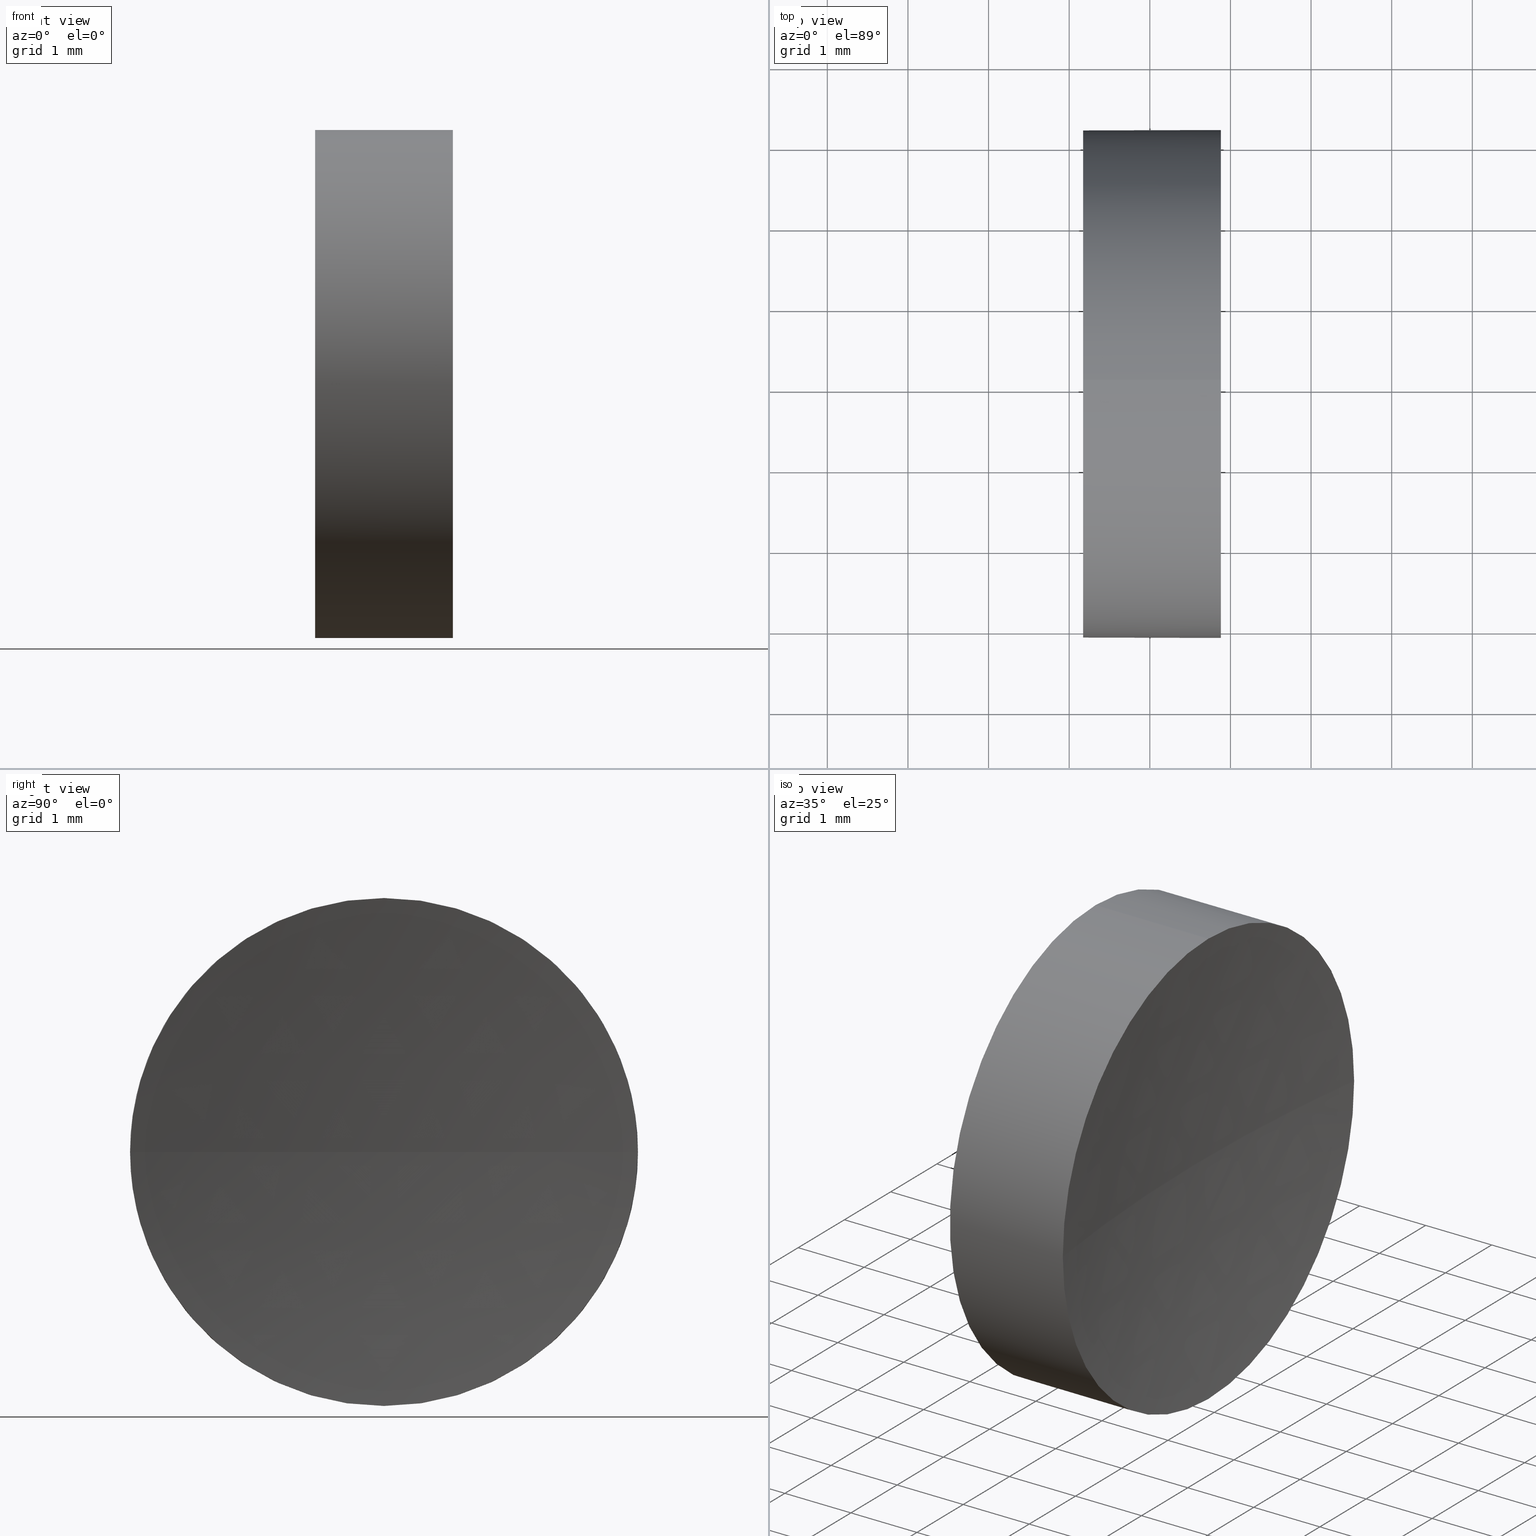
[diagram: canonical four-view strip — front | top / right | iso, engineering-drawing reading convention]
A machine part, canonical four-view strip (front | top / right | iso — engineering-drawing reading convention). The complete STEP part file that produces these views, byte-faithful:
ISO-10303-21;
HEADER;
FILE_DESCRIPTION (( 'STEP AP214' ),
    '1' );
FILE_NAME ('120009.STEP',
    '2019-06-14T03:21:34',
    ( '' ),
    ( '' ),
    'SwSTEP 2.0',
    'SolidWorks 2016',
    '' );
FILE_SCHEMA (( 'AUTOMOTIVE_DESIGN' ));
ENDSEC;

DATA;
#1 = DIRECTION ( 'NONE',  ( -1.000000000000000000, -0.0000000000000000000, -0.0000000000000000000 ) ) ;
#2 = CIRCLE ( 'NONE', #165, 3.150000000000001700 ) ;
#3 = SURFACE_STYLE_FILL_AREA ( #13 ) ;
#4 = FACE_OUTER_BOUND ( 'NONE', #22, .T. ) ;
#5 = STYLED_ITEM ( 'NONE', ( #122 ), #177 ) ;
#6 = ADVANCED_FACE ( 'NONE', ( #73 ), #180, .T. ) ;
#7 = MECHANICAL_DESIGN_GEOMETRIC_PRESENTATION_REPRESENTATION (  '', ( #5 ), #101 ) ;
#8 = SURFACE_STYLE_FILL_AREA ( #126 ) ;
#9 = ORIENTED_EDGE ( 'NONE', *, *, #141, .T. ) ;
#10 = APPLICATION_CONTEXT ( 'automotive_design' ) ;
#11 = SURFACE_SIDE_STYLE ('',( #8 ) ) ;
#12 = CARTESIAN_POINT ( 'NONE',  ( 47.40501261472310500, 13.04452057459747700, 0.0000000000000000000 ) ) ;
#13 = FILL_AREA_STYLE ('',( #103 ) ) ;
#14 = CARTESIAN_POINT ( 'NONE',  ( 47.40501261472310500, 13.04452057459747700, 0.0000000000000000000 ) ) ;
#15 = CARTESIAN_POINT ( 'NONE',  ( 23.88218947520227800, 13.04452057459747900, 0.0000000000000000000 ) ) ;
#16 = CARTESIAN_POINT ( 'NONE',  ( 23.88218947520227800, 13.04452057459747900, 0.0000000000000000000 ) ) ;
#17 = ORIENTED_EDGE ( 'NONE', *, *, #141, .F. ) ;
#18 = AXIS2_PLACEMENT_3D ( 'NONE', #50, #75, #87 ) ;
#19 = PRODUCT_DEFINITION ( 'δ֪', '', #21, #115 ) ;
#20 = EDGE_CURVE ( 'NONE', #152, #137, #70, .T. ) ;
#21 = PRODUCT_DEFINITION_FORMATION_WITH_SPECIFIED_SOURCE ( '�κ�', '', #49, .NOT_KNOWN. ) ;
#22 = EDGE_LOOP ( 'NONE', ( #66, #167, #17, #45 ) ) ;
#23 = ADVANCED_FACE ( 'NONE', ( #4 ), #58, .F. ) ;
#24 = EDGE_CURVE ( 'NONE', #46, #137, #118, .T. ) ;
#25 =( LENGTH_UNIT ( ) NAMED_UNIT ( * ) SI_UNIT ( .MILLI., .METRE. ) );
#26 = AXIS2_PLACEMENT_3D ( 'NONE', #185, #29, #89 ) ;
#27 = DIRECTION ( 'NONE',  ( 0.0000000000000000000, 0.0000000000000000000, 1.000000000000000000 ) ) ;
#28 = EDGE_CURVE ( 'NONE', #102, #48, #85, .T. ) ;
#29 = DIRECTION ( 'NONE',  ( 0.0000000000000000000, 0.0000000000000000000, 1.000000000000000000 ) ) ;
#30 = DIRECTION ( 'NONE',  ( 0.0000000000000000000, 1.000000000000000000, 0.0000000000000000000 ) ) ;
#31 = DIRECTION ( 'NONE',  ( 0.0000000000000000000, 0.0000000000000000000, 1.000000000000000000 ) ) ;
#32 = DIRECTION ( 'NONE',  ( -1.000000000000000000, -0.0000000000000000000, -0.0000000000000000000 ) ) ;
#33 = CLOSED_SHELL ( 'NONE', ( #153, #35, #23, #6, #63 ) ) ;
#34 = ORIENTED_EDGE ( 'NONE', *, *, #24, .F. ) ;
#35 = ADVANCED_FACE ( 'NONE', ( #163 ), #99, .F. ) ;
#36 = COLOUR_RGB ( '',1.000000000000000000, 1.000000000000000000, 1.000000000000000000 ) ;
#37 = EDGE_CURVE ( 'NONE', #46, #135, #128, .T. ) ;
#38 = DIRECTION ( 'NONE',  ( 0.0000000000000000000, 0.0000000000000000000, 1.000000000000000000 ) ) ;
#39 = FILL_AREA_STYLE_COLOUR ( '', #36 ) ;
#40 = PRODUCT_CONTEXT ( 'NONE', #168, 'mechanical' ) ;
#41 = AXIS2_PLACEMENT_3D ( 'NONE', #15, #1, #110 ) ;
#42 = DIRECTION ( 'NONE',  ( 0.0000000000000000000, 0.0000000000000000000, 1.000000000000000000 ) ) ;
#43 =( NAMED_UNIT ( * ) PLANE_ANGLE_UNIT ( ) SI_UNIT ( $, .RADIAN. ) );
#44 = CARTESIAN_POINT ( 'NONE',  ( 23.88218947520227800, 13.04452057459747900, 3.150000000000001700 ) ) ;
#45 = ORIENTED_EDGE ( 'NONE', *, *, #83, .T. ) ;
#46 = VERTEX_POINT ( 'NONE', #88 ) ;
#47 = EDGE_CURVE ( 'NONE', #135, #102, #59, .T. ) ;
#48 = VERTEX_POINT ( 'NONE', #144 ) ;
#49 = PRODUCT ( '120009', '120009', '', ( #40 ) ) ;
#50 = CARTESIAN_POINT ( 'NONE',  ( 21.22493055706841100, 13.04452057459747900, 0.0000000000000000000 ) ) ;
#51 = STYLED_ITEM ( 'NONE', ( #138 ), #164 ) ;
#52 = DIRECTION ( 'NONE',  ( 0.0000000000000000000, 1.000000000000000000, 1.224646799147353200E-016 ) ) ;
#53 = CARTESIAN_POINT ( 'NONE',  ( 47.40501261472310500, 13.04452057459747700, 0.0000000000000000000 ) ) ;
#54 = UNCERTAINTY_MEASURE_WITH_UNIT (LENGTH_MEASURE( 1.000000000000000100E-005 ), #136, 'distance_accuracy_value', 'NONE');
#55 = PRODUCT_DEFINITION_SHAPE ( 'NONE', 'NONE',  #19 ) ;
#56 = EDGE_LOOP ( 'NONE', ( #34, #81, #143, #183, #134 ) ) ;
#57 = MECHANICAL_DESIGN_GEOMETRIC_PRESENTATION_REPRESENTATION (  '', ( #51 ), #131 ) ;
#58 = SPHERICAL_SURFACE ( 'NONE', #119, 23.73279815894401100 ) ;
#59 = CIRCLE ( 'NONE', #60, 3.150000000000001700 ) ;
#60 = AXIS2_PLACEMENT_3D ( 'NONE', #69, #112, #31 ) ;
#61 = ORIENTED_EDGE ( 'NONE', *, *, #98, .F. ) ;
#62 = UNCERTAINTY_MEASURE_WITH_UNIT (LENGTH_MEASURE( 1.000000000000000100E-005 ), #91, 'distance_accuracy_value', 'NONE');
#63 = ADVANCED_FACE ( 'NONE', ( #113 ), #145, .F. ) ;
#64 = ORIENTED_EDGE ( 'NONE', *, *, #28, .F. ) ;
#65 = CARTESIAN_POINT ( 'NONE',  ( 22.17218947520228100, 13.04452057459747900, 3.150000000000001700 ) ) ;
#66 = ORIENTED_EDGE ( 'NONE', *, *, #114, .F. ) ;
#67 = CARTESIAN_POINT ( 'NONE',  ( 23.88218947520227800, 13.04452057459747900, 0.0000000000000000000 ) ) ;
#68 = CARTESIAN_POINT ( 'NONE',  ( 22.17218947520228100, 13.04452057459747900, 0.0000000000000000000 ) ) ;
#69 = CARTESIAN_POINT ( 'NONE',  ( 23.88218947520227800, 13.04452057459747900, 0.0000000000000000000 ) ) ;
#70 = CIRCLE ( 'NONE', #156, 3.150000000000001700 ) ;
#71 = ORIENTED_EDGE ( 'NONE', *, *, #114, .T. ) ;
#72 = EDGE_CURVE ( 'NONE', #137, #152, #2, .T. ) ;
#73 = FACE_OUTER_BOUND ( 'NONE', #56, .T. ) ;
#74 = DIRECTION ( 'NONE',  ( 0.0000000000000000000, 1.224646799147353200E-016, -1.000000000000000000 ) ) ;
#75 = DIRECTION ( 'NONE',  ( -1.000000000000000000, -0.0000000000000000000, -0.0000000000000000000 ) ) ;
#76 = DIRECTION ( 'NONE',  ( -1.000000000000000000, -0.0000000000000000000, -0.0000000000000000000 ) ) ;
#77 = CIRCLE ( 'NONE', #41, 3.150000000000001700 ) ;
#78 =( NAMED_UNIT ( * ) SI_UNIT ( $, .STERADIAN. ) SOLID_ANGLE_UNIT ( ) );
#79 =( NAMED_UNIT ( * ) SI_UNIT ( $, .STERADIAN. ) SOLID_ANGLE_UNIT ( ) );
#80 = DIRECTION ( 'NONE',  ( -1.000000000000000000, -0.0000000000000000000, -0.0000000000000000000 ) ) ;
#81 = ORIENTED_EDGE ( 'NONE', *, *, #37, .T. ) ;
#82 = DIRECTION ( 'NONE',  ( 0.0000000000000000000, 0.0000000000000000000, 1.000000000000000000 ) ) ;
#83 = EDGE_CURVE ( 'NONE', #48, #148, #174, .T. ) ;
#84 = COLOUR_RGB ( '',1.000000000000000000, 1.000000000000000000, 1.000000000000000000 ) ;
#85 = CIRCLE ( 'NONE', #109, 3.150000000000001700 ) ;
#86 = APPLICATION_PROTOCOL_DEFINITION ( 'draft international standard', 'automotive_design', 1998, #168 ) ;
#87 = DIRECTION ( 'NONE',  ( 0.0000000000000000000, 0.0000000000000000000, 1.000000000000000000 ) ) ;
#88 = CARTESIAN_POINT ( 'NONE',  ( 23.88218947520227800, 13.04452057459747900, -3.150000000000001700 ) ) ;
#89 = DIRECTION ( 'NONE',  ( 1.000000000000000000, 0.0000000000000000000, 0.0000000000000000000 ) ) ;
#90 = PRODUCT_RELATED_PRODUCT_CATEGORY ( 'part', '', ( #49 ) ) ;
#91 =( LENGTH_UNIT ( ) NAMED_UNIT ( * ) SI_UNIT ( .MILLI., .METRE. ) );
#92 = VECTOR ( 'NONE', #154, 1000.000000000000000 ) ;
#93 = CARTESIAN_POINT ( 'NONE',  ( 22.17218947520228100, 13.04452057459747900, 0.0000000000000000000 ) ) ;
#94 = AXIS2_PLACEMENT_3D ( 'NONE', #16, #32, #82 ) ;
#95 = DIRECTION ( 'NONE',  ( 1.000000000000000000, 0.0000000000000000000, 0.0000000000000000000 ) ) ;
#96 = ORIENTED_EDGE ( 'NONE', *, *, #83, .F. ) ;
#97 = EDGE_LOOP ( 'NONE', ( #9, #166, #149, #61, #181 ) ) ;
#98 = EDGE_CURVE ( 'NONE', #102, #152, #146, .T. ) ;
#99 = SPHERICAL_SURFACE ( 'NONE', #147, 23.73279815894401100 ) ;
#100 = EDGE_LOOP ( 'NONE', ( #130, #117 ) ) ;
#101 =( GEOMETRIC_REPRESENTATION_CONTEXT ( 3 ) GLOBAL_UNCERTAINTY_ASSIGNED_CONTEXT ( ( #151 ) ) GLOBAL_UNIT_ASSIGNED_CONTEXT ( ( #25, #159, #79 ) ) REPRESENTATION_CONTEXT ( 'NONE', 'WORKASPACE' ) );
#102 = VERTEX_POINT ( 'NONE', #44 ) ;
#103 = FILL_AREA_STYLE_COLOUR ( '', #84 ) ;
#104 = CARTESIAN_POINT ( 'NONE',  ( 23.88218947520227800, 9.894520574597480700, -3.857637417314157300E-016 ) ) ;
#105 = DIRECTION ( 'NONE',  ( 0.0000000000000000000, 0.0000000000000000000, 1.000000000000000000 ) ) ;
#106 = DIRECTION ( 'NONE',  ( 1.000000000000000000, 0.0000000000000000000, 0.0000000000000000000 ) ) ;
#107 = ORIENTED_EDGE ( 'NONE', *, *, #47, .F. ) ;
#108 = DIRECTION ( 'NONE',  ( 0.0000000000000000000, 1.000000000000000000, 0.0000000000000000000 ) ) ;
#109 = AXIS2_PLACEMENT_3D ( 'NONE', #67, #80, #111 ) ;
#110 = DIRECTION ( 'NONE',  ( 0.0000000000000000000, 0.0000000000000000000, 1.000000000000000000 ) ) ;
#111 = DIRECTION ( 'NONE',  ( 0.0000000000000000000, 0.0000000000000000000, 1.000000000000000000 ) ) ;
#112 = DIRECTION ( 'NONE',  ( -1.000000000000000000, -0.0000000000000000000, -0.0000000000000000000 ) ) ;
#113 = FACE_OUTER_BOUND ( 'NONE', #100, .T. ) ;
#114 = EDGE_CURVE ( 'NONE', #135, #148, #127, .T. ) ;
#115 = PRODUCT_DEFINITION_CONTEXT ( 'detailed design', #10, 'design' ) ;
#116 = AXIS2_PLACEMENT_3D ( 'NONE', #157, #74, #52 ) ;
#117 = ORIENTED_EDGE ( 'NONE', *, *, #72, .T. ) ;
#118 = LINE ( 'NONE', #172, #92 ) ;
#119 = AXIS2_PLACEMENT_3D ( 'NONE', #12, #120, #108 ) ;
#120 = DIRECTION ( 'NONE',  ( 0.0000000000000000000, 0.0000000000000000000, -1.000000000000000000 ) ) ;
#121 = CARTESIAN_POINT ( 'NONE',  ( 21.22493055706841100, 13.04452057459747900, 3.150000000000001700 ) ) ;
#122 = PRESENTATION_STYLE_ASSIGNMENT (( #155 ) ) ;
#123 = CARTESIAN_POINT ( 'NONE',  ( 23.67221445577909100, 13.04452057459747900, 0.0000000000000000000 ) ) ;
#124 = SURFACE_SIDE_STYLE ('',( #3 ) ) ;
#125 = CARTESIAN_POINT ( 'NONE',  ( 22.17218947520228100, 13.04452057459747900, 0.0000000000000000000 ) ) ;
#126 = FILL_AREA_STYLE ('',( #39 ) ) ;
#127 = CIRCLE ( 'NONE', #116, 23.73279815894401100 ) ;
#128 = CIRCLE ( 'NONE', #94, 3.150000000000001700 ) ;
#129 = AXIS2_PLACEMENT_3D ( 'NONE', #93, #95, #175 ) ;
#130 = ORIENTED_EDGE ( 'NONE', *, *, #20, .T. ) ;
#131 =( GEOMETRIC_REPRESENTATION_CONTEXT ( 3 ) GLOBAL_UNCERTAINTY_ASSIGNED_CONTEXT ( ( #62 ) ) GLOBAL_UNIT_ASSIGNED_CONTEXT ( ( #91, #43, #142 ) ) REPRESENTATION_CONTEXT ( 'NONE', 'WORKASPACE' ) );
#132 = VECTOR ( 'NONE', #173, 1000.000000000000000 ) ;
#133 =( GEOMETRIC_REPRESENTATION_CONTEXT ( 3 ) GLOBAL_UNCERTAINTY_ASSIGNED_CONTEXT ( ( #54 ) ) GLOBAL_UNIT_ASSIGNED_CONTEXT ( ( #136, #170, #78 ) ) REPRESENTATION_CONTEXT ( 'NONE', 'WORKASPACE' ) );
#134 = ORIENTED_EDGE ( 'NONE', *, *, #72, .F. ) ;
#135 = VERTEX_POINT ( 'NONE', #104 ) ;
#136 =( LENGTH_UNIT ( ) NAMED_UNIT ( * ) SI_UNIT ( .MILLI., .METRE. ) );
#137 = VERTEX_POINT ( 'NONE', #184 ) ;
#138 = PRESENTATION_STYLE_ASSIGNMENT (( #171 ) ) ;
#139 = APPLICATION_PROTOCOL_DEFINITION ( 'draft international standard', 'automotive_design', 1998, #10 ) ;
#140 = DIRECTION ( 'NONE',  ( 0.0000000000000000000, 0.0000000000000000000, -1.000000000000000000 ) ) ;
#141 = EDGE_CURVE ( 'NONE', #48, #46, #77, .T. ) ;
#142 =( NAMED_UNIT ( * ) SI_UNIT ( $, .STERADIAN. ) SOLID_ANGLE_UNIT ( ) );
#143 = ORIENTED_EDGE ( 'NONE', *, *, #47, .T. ) ;
#144 = CARTESIAN_POINT ( 'NONE',  ( 23.88218947520227800, 16.19452057459747600, 0.0000000000000000000 ) ) ;
#145 = PLANE ( 'NONE',  #129 ) ;
#146 = LINE ( 'NONE', #121, #132 ) ;
#147 = AXIS2_PLACEMENT_3D ( 'NONE', #14, #140, #30 ) ;
#148 = VERTEX_POINT ( 'NONE', #123 ) ;
#149 = ORIENTED_EDGE ( 'NONE', *, *, #20, .F. ) ;
#150 = SHAPE_DEFINITION_REPRESENTATION ( #55, #164 ) ;
#151 = UNCERTAINTY_MEASURE_WITH_UNIT (LENGTH_MEASURE( 1.000000000000000100E-005 ), #25, 'distance_accuracy_value', 'NONE');
#152 = VERTEX_POINT ( 'NONE', #65 ) ;
#153 = ADVANCED_FACE ( 'NONE', ( #179 ), #162, .T. ) ;
#154 = DIRECTION ( 'NONE',  ( -1.000000000000000000, -0.0000000000000000000, -0.0000000000000000000 ) ) ;
#155 = SURFACE_STYLE_USAGE ( .BOTH. , #124 ) ;
#156 = AXIS2_PLACEMENT_3D ( 'NONE', #125, #158, #42 ) ;
#157 = CARTESIAN_POINT ( 'NONE',  ( 47.40501261472310500, 13.04452057459747700, 0.0000000000000000000 ) ) ;
#158 = DIRECTION ( 'NONE',  ( -1.000000000000000000, -0.0000000000000000000, -0.0000000000000000000 ) ) ;
#159 =( NAMED_UNIT ( * ) PLANE_ANGLE_UNIT ( ) SI_UNIT ( $, .RADIAN. ) );
#160 = PRESENTATION_LAYER_ASSIGNMENT (  '', '', ( #51 ) ) ;
#161 = EDGE_LOOP ( 'NONE', ( #107, #71, #96, #64 ) ) ;
#162 = CYLINDRICAL_SURFACE ( 'NONE', #18, 3.150000000000001700 ) ;
#163 = FACE_OUTER_BOUND ( 'NONE', #161, .T. ) ;
#164 = ADVANCED_BREP_SHAPE_REPRESENTATION ( '120009', ( #177, #26 ), #133 ) ;
#165 = AXIS2_PLACEMENT_3D ( 'NONE', #68, #186, #38 ) ;
#166 = ORIENTED_EDGE ( 'NONE', *, *, #24, .T. ) ;
#167 = ORIENTED_EDGE ( 'NONE', *, *, #37, .F. ) ;
#168 = APPLICATION_CONTEXT ( 'automotive_design' ) ;
#169 = CARTESIAN_POINT ( 'NONE',  ( 21.22493055706841100, 13.04452057459747900, 0.0000000000000000000 ) ) ;
#170 =( NAMED_UNIT ( * ) PLANE_ANGLE_UNIT ( ) SI_UNIT ( $, .RADIAN. ) );
#171 = SURFACE_STYLE_USAGE ( .BOTH. , #11 ) ;
#172 = CARTESIAN_POINT ( 'NONE',  ( 21.22493055706841100, 13.04452057459747900, -3.150000000000001700 ) ) ;
#173 = DIRECTION ( 'NONE',  ( -1.000000000000000000, -0.0000000000000000000, -0.0000000000000000000 ) ) ;
#174 = CIRCLE ( 'NONE', #178, 23.73279815894401100 ) ;
#175 = DIRECTION ( 'NONE',  ( 0.0000000000000000000, 0.0000000000000000000, -1.000000000000000000 ) ) ;
#176 = PRESENTATION_LAYER_ASSIGNMENT (  '', '', ( #5 ) ) ;
#177 = MANIFOLD_SOLID_BREP ( '��ת1', #33 ) ;
#178 = AXIS2_PLACEMENT_3D ( 'NONE', #53, #27, #106 ) ;
#179 = FACE_OUTER_BOUND ( 'NONE', #97, .T. ) ;
#180 = CYLINDRICAL_SURFACE ( 'NONE', #182, 3.150000000000001700 ) ;
#181 = ORIENTED_EDGE ( 'NONE', *, *, #28, .T. ) ;
#182 = AXIS2_PLACEMENT_3D ( 'NONE', #169, #76, #105 ) ;
#183 = ORIENTED_EDGE ( 'NONE', *, *, #98, .T. ) ;
#184 = CARTESIAN_POINT ( 'NONE',  ( 22.17218947520228100, 13.04452057459747900, -3.150000000000001700 ) ) ;
#185 = CARTESIAN_POINT ( 'NONE',  ( 0.0000000000000000000, 0.0000000000000000000, 0.0000000000000000000 ) ) ;
#186 = DIRECTION ( 'NONE',  ( -1.000000000000000000, -0.0000000000000000000, -0.0000000000000000000 ) ) ;
ENDSEC;
END-ISO-10303-21;
